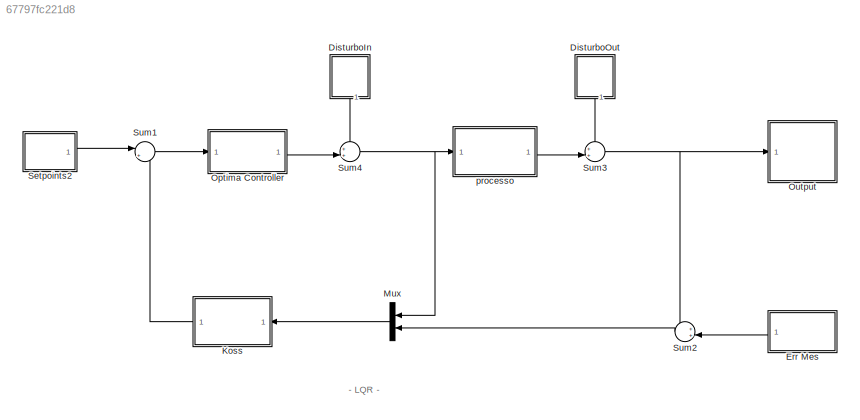
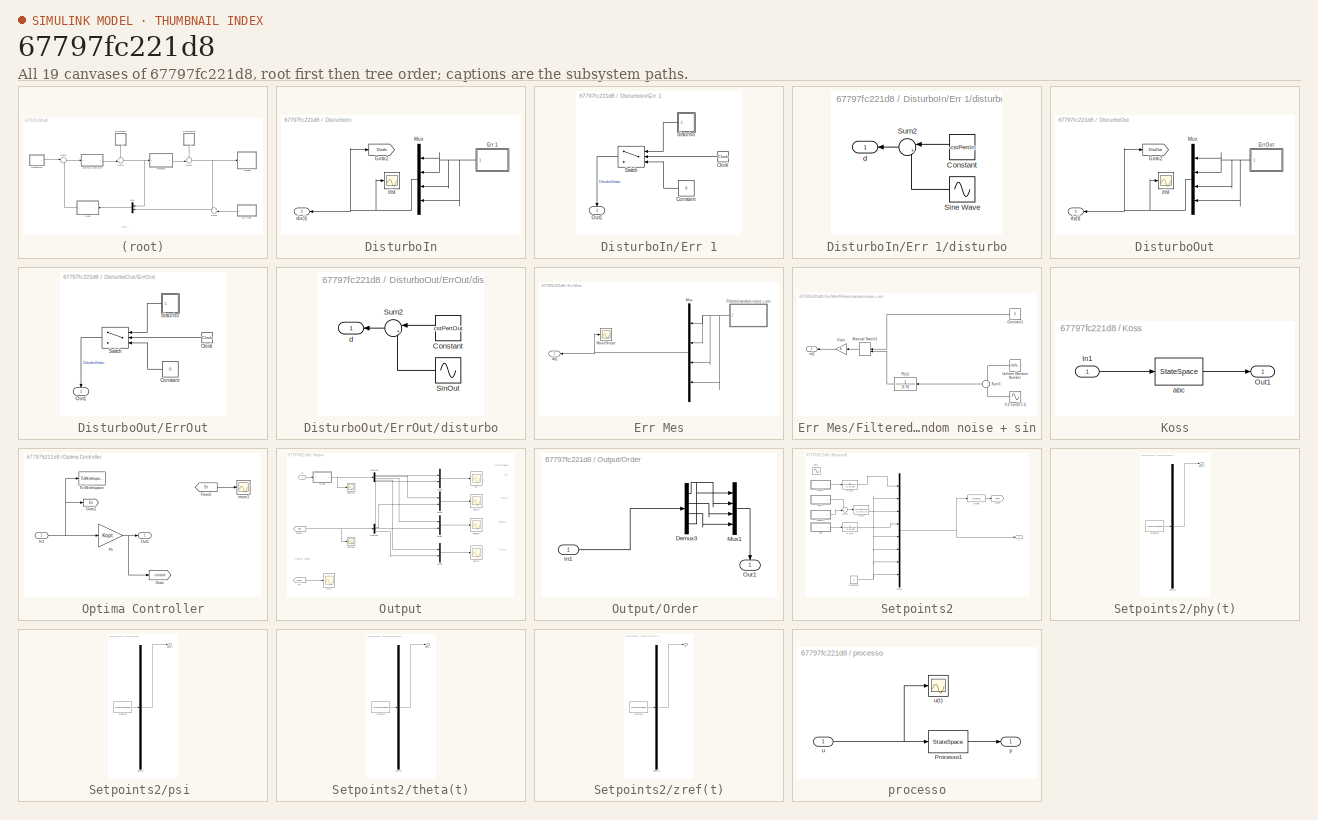
[diagram: thumbnail index - all 19 canvases of the model, root first then tree order]
MODEL slx_67797fc221d8
KIND model
CONFIG AbsTol = auto
CONFIG FixedStep = auto
CONFIG MaxStep = auto
CONFIG MinStep = auto
CONFIG RelTol = 1e-3
CONFIG SampleTimeConstraint = Unconstrained
CONFIG Solver = ode23
CONFIG SolverMode = Auto
CONFIG SolverName = ode23
CONFIG StartTime = 0.0
CONFIG StopTime = 30
BLOCK [SubSystem] DisturboIn
  Ports = [0, 1]
  RequestExecContextInheritance = off
  Variant = off
BLOCK [SubSystem] DisturboIn/Err 1
  Ports = [0, 1]
  RequestExecContextInheritance = off
  Variant = off
BLOCK [Clock] DisturboIn/Err 1/Clock
BLOCK [Constant] DisturboIn/Err 1/Constant
  Value = 0
BLOCK [Outport] DisturboIn/Err 1/Out1
  IconDisplay = Port number
BLOCK [Switch] DisturboIn/Err 1/Switch
  InputSameDT = off
  SaturateOnIntegerOverflow = off
  Threshold = 5
BLOCK [SubSystem] DisturboIn/Err 1/disturbo
  Ports = [0, 1]
  RequestExecContextInheritance = off
  Variant = off
BLOCK [Constant] DisturboIn/Err 1/disturbo/Constant
  Value = cstPertIn
BLOCK [Sin] DisturboIn/Err 1/disturbo/Sine Wave
  Amplitude = amplitudePertIN
  Frequency = omegaPertIN
  Ports = [0, 1]
  SampleTime = 0
BLOCK [Sum] DisturboIn/Err 1/disturbo/Sum2
  IconShape = round
  InputSameDT = off
  Inputs = |++
  OutDataTypeStr = Inherit: Inherit via internal rule
  Ports = [2, 1]
  SaturateOnIntegerOverflow = off
BLOCK [Outport] DisturboIn/Err 1/disturbo/d
  IconDisplay = Port number
BLOCK [Goto] DisturboIn/Goto2
  GotoTag = DistIn
  TagVisibility = global
BLOCK [Mux] DisturboIn/Mux
  DisplayOption = bar
  Inputs = [1 1 1 1]
  Ports = [4, 1]
BLOCK [Scope] DisturboIn/dist
  Ports = [1]
  ScopeSpecificationString = Simulink.scopes.TimeScopeBlockCfg('CurrentConfiguration', extmgr.ConfigurationSet(extmgr.Configuration('Core','General UI',true),extmgr.Configuration('Core','Source UI',true),extmgr.Configuration('Sources','WiredSimulink',true,'DataLoggingVariableName','ScopeData5','DataLoggingSaveFormat','StructureWithTime','DataLoggingDecimation','1','DataLoggingDecimateData',true),extmgr.Configuration('Visuals'...<+1715ch>
BLOCK [Outport] DisturboIn/du(t)
  IconDisplay = Port number
BLOCK [SubSystem] DisturboOut
  Ports = [0, 1]
  RequestExecContextInheritance = off
  Variant = off
BLOCK [SubSystem] DisturboOut/ErrOut
  Ports = [0, 1]
  RequestExecContextInheritance = off
  Variant = off
BLOCK [Clock] DisturboOut/ErrOut/Clock
BLOCK [Constant] DisturboOut/ErrOut/Constant
  Value = 0
BLOCK [Outport] DisturboOut/ErrOut/Out1
  IconDisplay = Port number
BLOCK [Switch] DisturboOut/ErrOut/Switch
  InputSameDT = off
  SaturateOnIntegerOverflow = off
  Threshold = 5
BLOCK [SubSystem] DisturboOut/ErrOut/disturbo
  Ports = [0, 1]
  RequestExecContextInheritance = off
  Variant = off
BLOCK [Constant] DisturboOut/ErrOut/disturbo/Constant
  Value = cstPertOut
BLOCK [Sin] DisturboOut/ErrOut/disturbo/SinOut
  Amplitude = amplitudePertOut
  Frequency = omegaPertOut
  Ports = [0, 1]
  SampleTime = 0
BLOCK [Sum] DisturboOut/ErrOut/disturbo/Sum2
  IconShape = round
  InputSameDT = off
  Inputs = |++
  OutDataTypeStr = Inherit: Inherit via internal rule
  Ports = [2, 1]
  SaturateOnIntegerOverflow = off
BLOCK [Outport] DisturboOut/ErrOut/disturbo/d
  IconDisplay = Port number
BLOCK [Goto] DisturboOut/Goto2
  GotoTag = DistOut
  TagVisibility = global
BLOCK [Mux] DisturboOut/Mux
  DisplayOption = bar
  Inputs = [1 1 1 1]
  Ports = [4, 1]
BLOCK [Scope] DisturboOut/dist
  Ports = [1]
  ScopeSpecificationString = Simulink.scopes.TimeScopeBlockCfg('CurrentConfiguration', extmgr.ConfigurationSet(extmgr.Configuration('Core','General UI',true),extmgr.Configuration('Core','Source UI',true),extmgr.Configuration('Sources','WiredSimulink',true,'DataLoggingVariableName','ScopeData5','DataLoggingSaveFormat','StructureWithTime','DataLoggingDecimation','1','DataLoggingDecimateData',true),extmgr.Configuration('Visuals'...<+1696ch>
BLOCK [Outport] DisturboOut/dy(t) 
  IconDisplay = Port number
BLOCK [SubSystem] Err Mes
  Ports = [0, 1]
  RequestExecContextInheritance = off
  Variant = off
BLOCK [Outport] Err Mes/  d(t)
  IconDisplay = Port number
BLOCK [SubSystem] Err Mes/Filtered random noise + sin
  Ports = [0, 1]
  RequestExecContextInheritance = off
  Variant = off
BLOCK [Sin] Err Mes/Filtered random noise + sin/0.2 sen(0.5 t)
  Amplitude = amplitudeNoise
  Frequency = omegaNoise
  Phase = 1
  Ports = [0, 1]
  SampleTime = 0
BLOCK [Constant] Err Mes/Filtered random noise + sin/Constant1
  Value = 0
BLOCK [Gain] Err Mes/Filtered random noise + sin/Gain
  OutDataTypeStr = Inherit: Inherit via internal rule
  ParamDataTypeStr = Inherit: Inherit via internal rule
  SaturateOnIntegerOverflow = off
BLOCK [ManualSwitch] Err Mes/Filtered random noise + sin/Manual Switch1
  CurrentSetting = 0
BLOCK [TransferFcn] Err Mes/Filtered random noise + sin/P(s)1
  Denominator = [1 9]
  Numerator = 1
BLOCK [Sum] Err Mes/Filtered random noise + sin/Sum3
  IconShape = round
  InputSameDT = off
  OutDataTypeStr = Inherit: Inherit via internal rule
  Ports = [2, 1]
  SaturateOnIntegerOverflow = off
BLOCK [UniformRandomNumber] Err Mes/Filtered random noise + sin/Uniform Random Number
  Maximum = randomAmpNoise
  Minimum = -randomAmpNoise
  SampleTime = 0.1
BLOCK [Outport] Err Mes/Filtered random noise + sin/n(t)
  IconDisplay = Port number
BLOCK [Mux] Err Mes/Mux
  DisplayOption = bar
  Inputs = [1 1 1 1]
  Ports = [4, 1]
BLOCK [Scope] Err Mes/NoiseScope
  Ports = [1]
  ScopeSpecificationString = Simulink.scopes.TimeScopeBlockCfg('CurrentConfiguration', extmgr.ConfigurationSet(extmgr.Configuration('Core','General UI',true),extmgr.Configuration('Core','Source UI',true),extmgr.Configuration('Sources','WiredSimulink',true,'DataLoggingVariableName','ScopeData21','DataLoggingSaveFormat','StructureWithTime','DataLoggingDecimation','1','DataLoggingDecimateData',true),extmgr.Configuration('Visuals...<+1800ch>
BLOCK [SubSystem] Koss
  Ports = [1, 1]
  RequestExecContextInheritance = off
  Variant = off
BLOCK [Inport] Koss/In1
  IconDisplay = Port number
BLOCK [Outport] Koss/Out1
  IconDisplay = Port number
BLOCK [StateSpace] Koss/abc 
  A = Aoss
  B = Bossw
  C = Coss
  D = Doss
  Ports = [1, 1]
  X0 = 0
BLOCK [Mux] Mux
  DisplayOption = bar
  Inputs = 2
  Ports = [2, 1]
BLOCK [SubSystem] Optima Controller
  Ports = [1, 1]
  RequestExecContextInheritance = off
  Variant = off
BLOCK [Gain] Optima Controller/F1
  Gain = Kopt
  Multiplication = Matrix(K*u) (u vector)
  OutDataTypeStr = Inherit: Inherit via internal rule
  ParamDataTypeStr = Inherit: Inherit via internal rule
  SaturateOnIntegerOverflow = off
BLOCK [From] Optima Controller/From3
  GotoTag = Err
  TagVisibility = global
BLOCK [Goto] Optima Controller/Goto
  GotoTag = control
  TagVisibility = global
BLOCK [Goto] Optima Controller/Goto1
  GotoTag = Err
  TagVisibility = global
BLOCK [Inport] Optima Controller/In1
  IconDisplay = Port number
BLOCK [Outport] Optima Controller/Out1
  IconDisplay = Port number
BLOCK [ToWorkspace] Optima Controller/To Workspace
  MaxDataPoints = inf
  Ports = [1]
  SampleTime = -1
  SaveFormat = Structure
  VariableName = errSim
BLOCK [Scope] Optima Controller/errore1
  Ports = [1]
  ScopeSpecificationString = C++SS(StrPVP('Location','[71, 94, 1081, 628]'),StrPVP('Open','off'),StrPVP('ZoomMode','xonly'),MxPVP('AxesTitles',24,'struct(''axes1'',''%<SignalLabel>'')'),MxPVP('ScopeGraphics',28,'struct(''FigureColor'',''[0.5 0.5 0.5]'',''AxesColor'',''[0 0 0]'',''AxesTickColor'',''[1 1 1]'',''LineColors'',''[1 1 0;1 0 1;0 1 1;1 0 0;0 1 0;0 0 1]'',''LineStyles'',''-|-|-|-|-|-'',''LineWidths'',''[0.5 0.5 0.5 0....<+338ch>
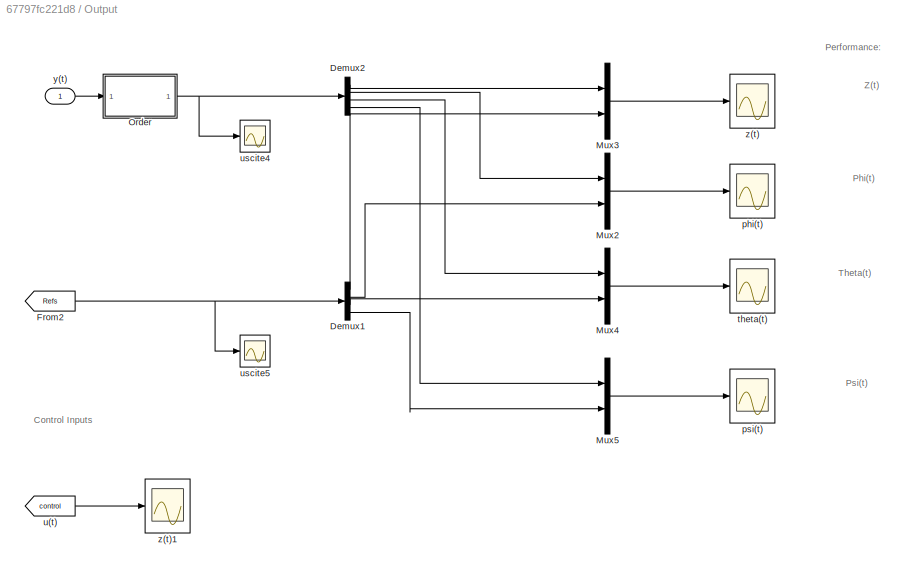
BLOCK [SubSystem] Output
  Ports = [1]
  RequestExecContextInheritance = off
  Variant = off
BLOCK [Demux] Output/Demux1
  DisplayOption = bar
  Ports = [1, 4]
BLOCK [Demux] Output/Demux2
  DisplayOption = bar
  Ports = [1, 4]
BLOCK [From] Output/From2
  GotoTag = Refs
  TagVisibility = global
BLOCK [Mux] Output/Mux2
  DisplayOption = bar
  Inputs = 2
  Ports = [2, 1]
BLOCK [Mux] Output/Mux3
  DisplayOption = bar
  Inputs = 2
  Ports = [2, 1]
BLOCK [Mux] Output/Mux4
  DisplayOption = bar
  Inputs = 2
  Ports = [2, 1]
BLOCK [Mux] Output/Mux5
  DisplayOption = bar
  Inputs = 2
  Ports = [2, 1]
BLOCK [SubSystem] Output/Order 
  Ports = [1, 1]
  RequestExecContextInheritance = off
  Variant = off
BLOCK [Demux] Output/Order /Demux3
  DisplayOption = bar
  Ports = [1, 4]
BLOCK [Inport] Output/Order /In1
  IconDisplay = Port number
BLOCK [Mux] Output/Order /Mux1
  DisplayOption = bar
  Ports = [4, 1]
BLOCK [Outport] Output/Order /Out1
  IconDisplay = Port number
BLOCK [Scope] Output/phi(t)
  Ports = [1]
  ScopeSpecificationString = Simulink.scopes.TimeScopeBlockCfg('CurrentConfiguration', extmgr.ConfigurationSet(extmgr.Configuration('Core','General UI',true),extmgr.Configuration('Core','Source UI',true),extmgr.Configuration('Sources','WiredSimulink',true,'DataLoggingVariableName','ScopeData4','DataLoggingSaveFormat','StructureWithTime','DataLoggingDecimation','1','DataLoggingDecimateData',true),extmgr.Configuration('Visuals'...<+1744ch>
BLOCK [Scope] Output/psi(t)
  Ports = [1]
  ScopeSpecificationString = Simulink.scopes.TimeScopeBlockCfg('CurrentConfiguration', extmgr.ConfigurationSet(extmgr.Configuration('Core','General UI',true),extmgr.Configuration('Core','Source UI',true),extmgr.Configuration('Sources','WiredSimulink',true,'DataLoggingVariableName','ScopeData7','DataLoggingSaveFormat','StructureWithTime','DataLoggingDecimation','1','DataLoggingDecimateData',true),extmgr.Configuration('Visuals'...<+1699ch>
BLOCK [Scope] Output/theta(t)
  Ports = [1]
  ScopeSpecificationString = Simulink.scopes.TimeScopeBlockCfg('CurrentConfiguration', extmgr.ConfigurationSet(extmgr.Configuration('Core','General UI',true),extmgr.Configuration('Core','Source UI',true),extmgr.Configuration('Sources','WiredSimulink',true,'DataLoggingVariableName','ScopeData6','DataLoggingSaveFormat','StructureWithTime','DataLoggingDecimation','1','DataLoggingDecimateData',true),extmgr.Configuration('Visuals'...<+1705ch>
BLOCK [From] Output/u(t) 
  GotoTag = control
  TagVisibility = global
BLOCK [Scope] Output/uscite4
  Ports = [1]
  ScopeSpecificationString = C++SS(StrPVP('Location','[76, 91, 1096, 627]'),StrPVP('Open','off'),MxPVP('AxesTitles',24,'struct(''axes1'',''%<SignalLabel>'')'),MxPVP('ScopeGraphics',28,'struct(''FigureColor'',''[0.5 0.5 0.5]'',''AxesColor'',''[0 0 0]'',''AxesTickColor'',''[1 1 1]'',''LineColors'',''[1 1 0;1 0 1;0 1 1;1 0 0;0 1 0;0 0 1]'',''LineStyles'',''-|-|-|-|-|-'',''LineWidths'',''[0.5 0.5 0.5 0.5 0.5 0.5]'',''MarkerStyles...<+312ch>
BLOCK [Scope] Output/uscite5
  Ports = [1]
  ScopeSpecificationString = Simulink.scopes.TimeScopeBlockCfg('CurrentConfiguration', extmgr.ConfigurationSet(extmgr.Configuration('Core','General UI',true),extmgr.Configuration('Core','Source UI',true),extmgr.Configuration('Sources','WiredSimulink',true,'DataLoggingVariableName','ScopeData9','DataLoggingSaveFormat','StructureWithTime','DataLoggingDecimation','1','DataLoggingDecimateData',true),extmgr.Configuration('Visuals'...<+1697ch>
BLOCK [Inport] Output/y(t)
  IconDisplay = Port number
BLOCK [Scope] Output/z(t)
  Ports = [1]
  ScopeSpecificationString = Simulink.scopes.TimeScopeBlockCfg('CurrentConfiguration', extmgr.ConfigurationSet(extmgr.Configuration('Core','General UI',true,'FigureColor',[0.501960784313725 0.501960784313725 0.501960784313725]),extmgr.Configuration('Core','Source UI',true),extmgr.Configuration('Sources','WiredSimulink',true,'DataLoggingSaveFormat','StructureWithTime','DataLoggingDecimation','1','DataLoggingDecimateData',true)...<+2794ch>
BLOCK [Scope] Output/z(t)1
  Ports = [1]
  ScopeSpecificationString = Simulink.scopes.TimeScopeBlockCfg('CurrentConfiguration', extmgr.ConfigurationSet(extmgr.Configuration('Core','General UI',true,'FigureColor',[0.501960784313725 0.501960784313725 0.501960784313725]),extmgr.Configuration('Core','Source UI',true),extmgr.Configuration('Sources','WiredSimulink',true,'DataLoggingSaveFormat','StructureWithTime','DataLoggingDecimation','1','DataLoggingDecimateData',true,...<+2865ch>
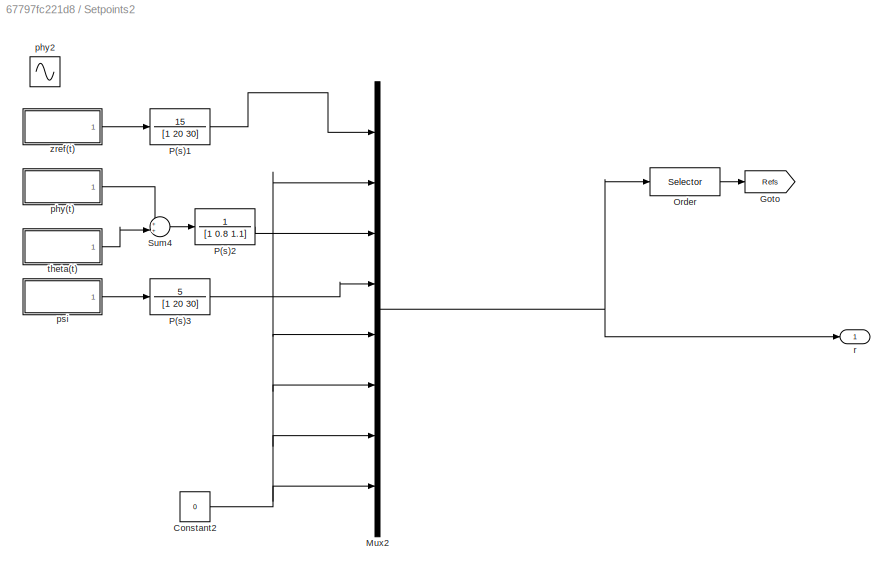
BLOCK [SubSystem] Setpoints2
  Ports = [0, 1]
  RequestExecContextInheritance = off
  Variant = off
BLOCK [Constant] Setpoints2/Constant2
  Value = 0
BLOCK [Goto] Setpoints2/Goto
  GotoTag = Refs
  TagVisibility = global
BLOCK [Mux] Setpoints2/Mux2
  DisplayOption = bar
  Inputs = [1 1 1 1 1 1 1 1]
  Ports = [8, 1]
BLOCK [Selector] Setpoints2/Order
  IndexOptions = Index vector (dialog)
  Indices = [1,3,4,5]
  InputPortWidth = 8
  OutputSizes = 1
  Ports = [1, 1]
BLOCK [TransferFcn] Setpoints2/P(s)1
  Denominator = [1 20 30]
  Numerator = 15
BLOCK [TransferFcn] Setpoints2/P(s)2
  Denominator = [1 0.8 1.1]
  Numerator = 1
BLOCK [TransferFcn] Setpoints2/P(s)3
  Denominator = [1 20 30]
  Numerator = 5
BLOCK [Sum] Setpoints2/Sum4
  IconShape = round
  InputSameDT = off
  Inputs = ++|
  OutDataTypeStr = Inherit: Inherit via internal rule
  Ports = [2, 1]
  SaturateOnIntegerOverflow = off
BLOCK [SubSystem] Setpoints2/phy(t)
  ClipboardFcn = sigbuilder_block('clipboard');
  CloseFcn = sigbuilder_block('close');
  ContinueFcn = sigbuilder_block('continue');
  CopyFcn = sigbuilder_block('copy');
  DeleteFcn = sigbuilder_block('delete');
  LoadFcn = sigbuilder_block('load');
  MaskHideContents = on
  ModelCloseFcn = sigbuilder_block('modelClose');
  NameChangeFcn = sigbuilder_block('namechange');
  OpenFcn = sigbuilder_block('open',[341.6 120.8 550.4 400 ]);
  PauseFcn = sigbuilder_block('pause');
  Ports = [0, 1]
  PreSaveFcn = sigbuilder_block('preSave');
  RequestExecContextInheritance = off
  StartFcn = sigbuilder_block('start');
  StopFcn = sigbuilder_block('stop');
  Tag = STV Subsys
  Variant = off
BLOCK [Demux] Setpoints2/phy(t)/Demux
  Outputs = 1
  Ports = [1, 1]
  Tag = STV Demux
BLOCK [FromWorkspace] Setpoints2/phy(t)/FromWs
  SampleTime = 0
  Tag = STV FromWs
  VariableName = tuvar
  ZeroCross = on
BLOCK [Outport] Setpoints2/phy(t)/Signal 1
  IconDisplay = Port number
  Tag = STV Outport
BLOCK [Sin] Setpoints2/phy2
  Amplitude = 10
  Frequency = 0.2
  Ports = [0, 1]
  SampleTime = 0
BLOCK [SubSystem] Setpoints2/psi 
  ClipboardFcn = sigbuilder_block('clipboard');
  CloseFcn = sigbuilder_block('close');
  ContinueFcn = sigbuilder_block('continue');
  CopyFcn = sigbuilder_block('copy');
  DeleteFcn = sigbuilder_block('delete');
  LoadFcn = sigbuilder_block('load');
  MaskHideContents = on
  ModelCloseFcn = sigbuilder_block('modelClose');
  NameChangeFcn = sigbuilder_block('namechange');
  OpenFcn = sigbuilder_block('open',[341.6 120.8 550.4 400 ]);
  PauseFcn = sigbuilder_block('pause');
  Ports = [0, 1]
  PreSaveFcn = sigbuilder_block('preSave');
  RequestExecContextInheritance = off
  StartFcn = sigbuilder_block('start');
  StopFcn = sigbuilder_block('stop');
  Tag = STV Subsys
  Variant = off
BLOCK [Demux] Setpoints2/psi /Demux
  Outputs = 1
  Ports = [1, 1]
  Tag = STV Demux
BLOCK [FromWorkspace] Setpoints2/psi /FromWs
  SampleTime = 0
  Tag = STV FromWs
  VariableName = tuvar
  ZeroCross = on
BLOCK [Outport] Setpoints2/psi /Signal 1
  IconDisplay = Port number
  Tag = STV Outport
BLOCK [Outport] Setpoints2/r
  IconDisplay = Port number
BLOCK [SubSystem] Setpoints2/theta(t)
  ClipboardFcn = sigbuilder_block('clipboard');
  CloseFcn = sigbuilder_block('close');
  ContinueFcn = sigbuilder_block('continue');
  CopyFcn = sigbuilder_block('copy');
  DeleteFcn = sigbuilder_block('delete');
  LoadFcn = sigbuilder_block('load');
  MaskHideContents = on
  ModelCloseFcn = sigbuilder_block('modelClose');
  NameChangeFcn = sigbuilder_block('namechange');
  OpenFcn = sigbuilder_block('open',[341.6 120.8 550.4 400 ]);
  PauseFcn = sigbuilder_block('pause');
  Ports = [0, 1]
  PreSaveFcn = sigbuilder_block('preSave');
  RequestExecContextInheritance = off
  StartFcn = sigbuilder_block('start');
  StopFcn = sigbuilder_block('stop');
  Tag = STV Subsys
  Variant = off
BLOCK [Demux] Setpoints2/theta(t)/Demux
  Outputs = 1
  Ports = [1, 1]
  Tag = STV Demux
BLOCK [FromWorkspace] Setpoints2/theta(t)/FromWs
  SampleTime = 0
  Tag = STV FromWs
  VariableName = tuvar
  ZeroCross = on
BLOCK [Outport] Setpoints2/theta(t)/Signal 1
  IconDisplay = Port number
  Tag = STV Outport
BLOCK [SubSystem] Setpoints2/zref(t)
  ClipboardFcn = sigbuilder_block('clipboard');
  CloseFcn = sigbuilder_block('close');
  ContinueFcn = sigbuilder_block('continue');
  CopyFcn = sigbuilder_block('copy');
  DeleteFcn = sigbuilder_block('delete');
  LoadFcn = sigbuilder_block('load');
  MaskHideContents = on
  ModelCloseFcn = sigbuilder_block('modelClose');
  NameChangeFcn = sigbuilder_block('namechange');
  OpenFcn = sigbuilder_block('open',[341.6 120.8 550.4 400 ]);
  PauseFcn = sigbuilder_block('pause');
  Ports = [0, 1]
  PreSaveFcn = sigbuilder_block('preSave');
  RequestExecContextInheritance = off
  StartFcn = sigbuilder_block('start');
  StopFcn = sigbuilder_block('stop');
  Tag = STV Subsys
  Variant = off
BLOCK [Demux] Setpoints2/zref(t)/Demux
  Outputs = 1
  Ports = [1, 1]
  Tag = STV Demux
BLOCK [FromWorkspace] Setpoints2/zref(t)/FromWs
  SampleTime = 0
  Tag = STV FromWs
  VariableName = tuvar
  ZeroCross = on
BLOCK [Outport] Setpoints2/zref(t)/Z
  IconDisplay = Port number
  Tag = STV Outport
BLOCK [Sum] Sum1
  IconShape = round
  InputSameDT = off
  Inputs = |+-
  OutDataTypeStr = Inherit: Inherit via internal rule
  Ports = [2, 1]
  SaturateOnIntegerOverflow = off
BLOCK [Sum] Sum2
  IconShape = round
  InputSameDT = off
  Inputs = ++|
  OutDataTypeStr = Inherit: Inherit via internal rule
  Ports = [2, 1]
  SaturateOnIntegerOverflow = off
BLOCK [Sum] Sum3
  IconShape = round
  InputSameDT = off
  Inputs = ++|
  OutDataTypeStr = Inherit: Inherit via internal rule
  Ports = [2, 1]
  SaturateOnIntegerOverflow = off
BLOCK [Sum] Sum4
  IconShape = round
  InputSameDT = off
  Inputs = ++|
  OutDataTypeStr = Inherit: Inherit via internal rule
  Ports = [2, 1]
  SaturateOnIntegerOverflow = off
BLOCK [SubSystem] processo
  Ports = [1, 1]
  RequestExecContextInheritance = off
  Variant = off
BLOCK [StateSpace] processo/Processo1
  A = A0
  B = B0
  C = C0
  D = D0
  Ports = [1, 1]
  X0 = 0
BLOCK [Inport] processo/u
  IconDisplay = Port number
BLOCK [Scope] processo/u(t) 
  Ports = [1]
  ScopeSpecificationString = C++SS(StrPVP('Location','[66, 153, 1076, 606]'),StrPVP('Open','off'),MxPVP('AxesTitles',24,'struct(''axes1'',''%<SignalLabel>'')'),MxPVP('ScopeGraphics',28,'struct(''FigureColor'',''[0.5 0.5 0.5]'',''AxesColor'',''[0 0 0]'',''AxesTickColor'',''[1 1 1]'',''LineColors'',''[1 1 0;1 0 1;0 1 1;1 0 0;0 1 0;0 0 1]'',''LineStyles'',''-|-|-|-|-|-'',''LineWidths'',''[0.5 0.5 0.5 0.5 0.5 0.5]'',''MarkerStyle...<+245ch>
BLOCK [Outport] processo/y
  IconDisplay = Port number
ANNOTATION (root): - LQR -
ANNOTATION Output: Control Inputs
ANNOTATION Output: Performance:
ANNOTATION Output: Theta(t)
ANNOTATION Output: Z(t)
ANNOTATION Output: Phi(t)
ANNOTATION Output: Psi(t)
LINE DisturboIn/Err 1/Clock:1 -> DisturboIn/Err 1/Switch:2
LINE DisturboIn/Err 1/Constant:1 -> DisturboIn/Err 1/Switch:3
LINE DisturboIn/Err 1/Switch:1 -> DisturboIn/Err 1/Out1:1
LINE DisturboIn/Err 1/disturbo/Constant:1 -> DisturboIn/Err 1/disturbo/Sum2:1
LINE DisturboIn/Err 1/disturbo/Sine Wave:1 -> DisturboIn/Err 1/disturbo/Sum2:2
LINE DisturboIn/Err 1/disturbo/Sum2:1 -> DisturboIn/Err 1/disturbo/d:1
LINE DisturboIn/Err 1/disturbo:1 -> DisturboIn/Err 1/Switch:1
NET DisturboIn/Err 1:1 -> DisturboIn/Mux:1, DisturboIn/Mux:2, DisturboIn/Mux:3, DisturboIn/Mux:4
NET DisturboIn/Mux:1 -> DisturboIn/Goto2:1, DisturboIn/dist:1, DisturboIn/du(t):1
LINE DisturboIn:1 -> Sum4:1
LINE DisturboOut/ErrOut/Clock:1 -> DisturboOut/ErrOut/Switch:2
LINE DisturboOut/ErrOut/Constant:1 -> DisturboOut/ErrOut/Switch:3
LINE DisturboOut/ErrOut/Switch:1 -> DisturboOut/ErrOut/Out1:1
LINE DisturboOut/ErrOut/disturbo/Constant:1 -> DisturboOut/ErrOut/disturbo/Sum2:1
LINE DisturboOut/ErrOut/disturbo/SinOut:1 -> DisturboOut/ErrOut/disturbo/Sum2:2
LINE DisturboOut/ErrOut/disturbo/Sum2:1 -> DisturboOut/ErrOut/disturbo/d:1
LINE DisturboOut/ErrOut/disturbo:1 -> DisturboOut/ErrOut/Switch:1
NET DisturboOut/ErrOut:1 -> DisturboOut/Mux:1, DisturboOut/Mux:2, DisturboOut/Mux:3, DisturboOut/Mux:4
NET DisturboOut/Mux:1 -> DisturboOut/Goto2:1, DisturboOut/dist:1, DisturboOut/dy(t) :1
LINE DisturboOut:1 -> Sum3:1
LINE Err Mes/Filtered random noise + sin/0.2 sen(0.5 t):1 -> Err Mes/Filtered random noise + sin/Sum3:2
LINE Err Mes/Filtered random noise + sin/Constant1:1 -> Err Mes/Filtered random noise + sin/Manual Switch1:1
LINE Err Mes/Filtered random noise + sin/Gain:1 -> Err Mes/Filtered random noise + sin/n(t):1
LINE Err Mes/Filtered random noise + sin/Manual Switch1:1 -> Err Mes/Filtered random noise + sin/Gain:1
LINE Err Mes/Filtered random noise + sin/P(s)1:1 -> Err Mes/Filtered random noise + sin/Manual Switch1:2
LINE Err Mes/Filtered random noise + sin/Sum3:1 -> Err Mes/Filtered random noise + sin/P(s)1:1
LINE Err Mes/Filtered random noise + sin/Uniform Random Number:1 -> Err Mes/Filtered random noise + sin/Sum3:1
NET Err Mes/Filtered random noise + sin:1 -> Err Mes/Mux:1, Err Mes/Mux:2, Err Mes/Mux:3, Err Mes/Mux:4
NET Err Mes/Mux:1 -> Err Mes/  d(t):1, Err Mes/NoiseScope:1
LINE Err Mes:1 -> Sum2:2
LINE Koss/In1:1 -> Koss/abc :1
LINE Koss/abc :1 -> Koss/Out1:1
LINE Koss:1 -> Sum1:2
LINE Mux:1 -> Koss:1
NET Optima Controller/F1:1 -> Optima Controller/Goto:1, Optima Controller/Out1:1
LINE Optima Controller/From3:1 -> Optima Controller/errore1:1
NET Optima Controller/In1:1 -> Optima Controller/F1:1, Optima Controller/Goto1:1, Optima Controller/To Workspace:1
LINE Optima Controller:1 -> Sum4:2
LINE Output/Demux1:1 -> Output/Mux3:2
LINE Output/Demux1:2 -> Output/Mux2:2
LINE Output/Demux1:3 -> Output/Mux4:2
LINE Output/Demux1:4 -> Output/Mux5:2
LINE Output/Demux2:1 -> Output/Mux3:1
LINE Output/Demux2:2 -> Output/Mux2:1
LINE Output/Demux2:3 -> Output/Mux4:1
LINE Output/Demux2:4 -> Output/Mux5:1
NET Output/From2:1 -> Output/Demux1:1, Output/uscite5:1
LINE Output/Mux2:1 -> Output/phi(t):1
LINE Output/Mux3:1 -> Output/z(t):1
LINE Output/Mux4:1 -> Output/theta(t):1
LINE Output/Mux5:1 -> Output/psi(t):1
LINE Output/Order /Demux3:1 -> Output/Order /Mux1:2
LINE Output/Order /Demux3:2 -> Output/Order /Mux1:3
LINE Output/Order /Demux3:3 -> Output/Order /Mux1:4
LINE Output/Order /Demux3:4 -> Output/Order /Mux1:1
LINE Output/Order /In1:1 -> Output/Order /Demux3:1
LINE Output/Order /Mux1:1 -> Output/Order /Out1:1
NET Output/Order :1 -> Output/Demux2:1, Output/uscite4:1
LINE Output/u(t) :1 -> Output/z(t)1:1
LINE Output/y(t):1 -> Output/Order :1
NET Setpoints2/Constant2:1 -> Setpoints2/Mux2:2, Setpoints2/Mux2:5, Setpoints2/Mux2:6, Setpoints2/Mux2:7, Setpoints2/Mux2:8
NET Setpoints2/Mux2:1 -> Setpoints2/Order:1, Setpoints2/r:1
LINE Setpoints2/Order:1 -> Setpoints2/Goto:1
LINE Setpoints2/P(s)1:1 -> Setpoints2/Mux2:1
LINE Setpoints2/P(s)2:1 -> Setpoints2/Mux2:3
LINE Setpoints2/P(s)3:1 -> Setpoints2/Mux2:4
LINE Setpoints2/Sum4:1 -> Setpoints2/P(s)2:1
LINE Setpoints2/phy(t):1 -> Setpoints2/Sum4:1
LINE Setpoints2/psi :1 -> Setpoints2/P(s)3:1
LINE Setpoints2/theta(t):1 -> Setpoints2/Sum4:2
LINE Setpoints2/zref(t):1 -> Setpoints2/P(s)1:1
LINE Setpoints2:1 -> Sum1:1
LINE Sum1:1 -> Optima Controller:1
LINE Sum2:1 -> Mux:2
NET Sum3:1 -> Output:1, Sum2:1
NET Sum4:1 -> Mux:1, processo:1
LINE processo/Processo1:1 -> processo/y:1
NET processo/u:1 -> processo/Processo1:1, processo/u(t) :1
LINE processo:1 -> Sum3:2
note: NET lines group one-source signal fan-out (src -> all destinations, sorted); 1:1 wires keep LINE
